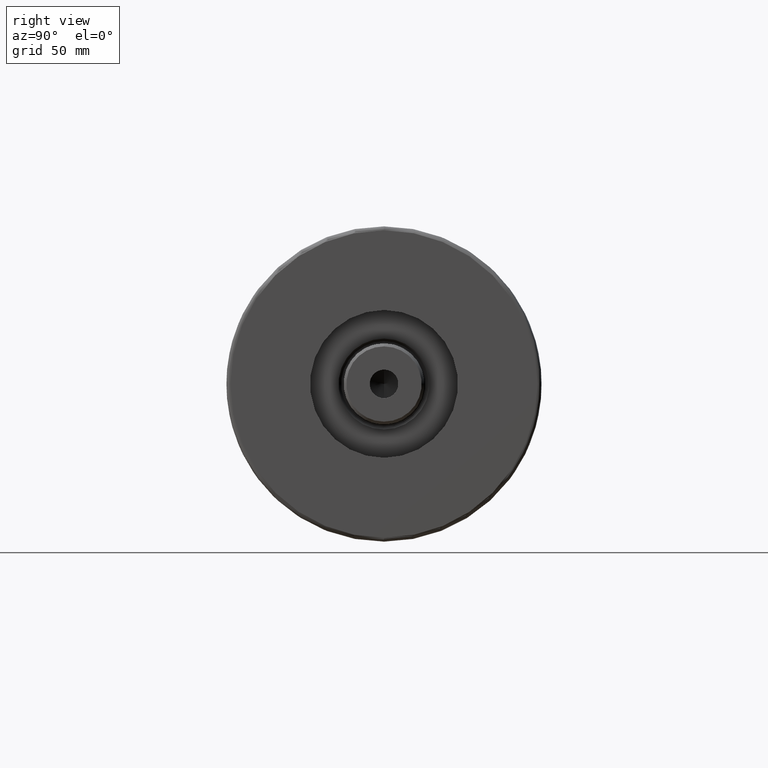
[diagram: clean part render]
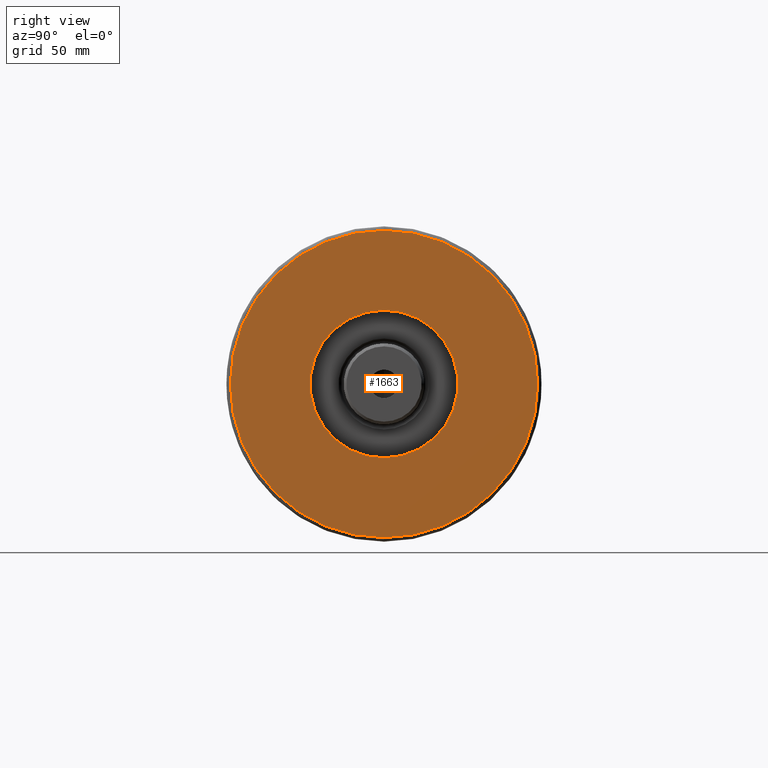
[diagram: same view with one face highlighted and labeled with its STEP entity id]
A machine part, right view. The second image highlights one B-rep face of the part: STEP entity #1663.
In plain terms, the highlighted planar face has unit normal (1, 0, -0).
Its self-contained STEP definition (entity closure, byte-faithful):
#320 = CARTESIAN_POINT ( 'NONE',  ( 0.000000000000000000, 0.000000000000000000, 46.00000000000000000 ) ) ;
#331 = EDGE_CURVE ( 'NONE', #2769, #2687, #1454, .T. ) ;
#387 = DIRECTION ( 'NONE',  ( 0.000000000000000000, 0.000000000000000000, 1.000000000000000000 ) ) ;
#608 = CARTESIAN_POINT ( 'NONE',  ( 0.000000000000000000, 0.000000000000000000, 46.00000000000000000 ) ) ;
#738 = CARTESIAN_POINT ( 'NONE',  ( 0.000000000000000000, 0.000000000000000000, 46.00000000000000000 ) ) ;
#963 = FACE_BOUND ( 'NONE', #3168, .T. ) ;
#1012 = DIRECTION ( 'NONE',  ( 1.000000000000000000, 0.000000000000000000, 0.000000000000000000 ) ) ;
#1030 = CARTESIAN_POINT ( 'NONE',  ( 0.000000000000000000, 0.000000000000000000, 46.00000000000000000 ) ) ;
#1033 = EDGE_CURVE ( 'NONE', #1678, #3473, #2204, .T. ) ;
#1238 = CIRCLE ( 'NONE', #4657, 78.00000000000000000 ) ;
#1314 = AXIS2_PLACEMENT_3D ( 'NONE', #738, #387, #3053 ) ;
#1339 = CARTESIAN_POINT ( 'NONE',  ( -78.00000000000000000, 9.674709713264090904E-15, 46.00000000000000000 ) ) ;
#1454 = CIRCLE ( 'NONE', #1622, 37.50000000000000711 ) ;
#1528 = EDGE_LOOP ( 'NONE', ( #2205, #1806 ) ) ;
#1550 = AXIS2_PLACEMENT_3D ( 'NONE', #3917, #3939, #3255 ) ;
#1622 = AXIS2_PLACEMENT_3D ( 'NONE', #1030, #2878, #4405 ) ;
#1663 = ADVANCED_FACE ( 'NONE', ( #2399, #963 ), #2030, .T. ) ;
#1678 = VERTEX_POINT ( 'NONE', #1339 ) ;
#1806 = ORIENTED_EDGE ( 'NONE', *, *, #1033, .T. ) ;
#2025 = EDGE_CURVE ( 'NONE', #2687, #2769, #3303, .T. ) ;
#2030 = PLANE ( 'NONE',  #1550 ) ;
#2204 = CIRCLE ( 'NONE', #2354, 78.00000000000000000 ) ;
#2205 = ORIENTED_EDGE ( 'NONE', *, *, #3443, .T. ) ;
#2354 = AXIS2_PLACEMENT_3D ( 'NONE', #320, #2922, #2552 ) ;
#2399 = FACE_OUTER_BOUND ( 'NONE', #1528, .T. ) ;
#2552 = DIRECTION ( 'NONE',  ( 1.000000000000000000, 0.000000000000000000, 0.000000000000000000 ) ) ;
#2687 = VERTEX_POINT ( 'NONE', #3823 ) ;
#2769 = VERTEX_POINT ( 'NONE', #4339 ) ;
#2826 = ORIENTED_EDGE ( 'NONE', *, *, #331, .F. ) ;
#2878 = DIRECTION ( 'NONE',  ( 0.000000000000000000, 0.000000000000000000, 1.000000000000000000 ) ) ;
#2922 = DIRECTION ( 'NONE',  ( 0.000000000000000000, 0.000000000000000000, 1.000000000000000000 ) ) ;
#3053 = DIRECTION ( 'NONE',  ( 1.000000000000000000, 0.000000000000000000, 0.000000000000000000 ) ) ;
#3168 = EDGE_LOOP ( 'NONE', ( #3521, #2826 ) ) ;
#3255 = DIRECTION ( 'NONE',  ( 1.000000000000000000, 0.000000000000000000, -0.000000000000000000 ) ) ;
#3303 = CIRCLE ( 'NONE', #1314, 37.50000000000000711 ) ;
#3443 = EDGE_CURVE ( 'NONE', #3473, #1678, #1238, .T. ) ;
#3473 = VERTEX_POINT ( 'NONE', #4061 ) ;
#3521 = ORIENTED_EDGE ( 'NONE', *, *, #2025, .F. ) ;
#3823 = CARTESIAN_POINT ( 'NONE',  ( 37.50000000000000711, 0.000000000000000000, 46.00000000000000000 ) ) ;
#3917 = CARTESIAN_POINT ( 'NONE',  ( 0.000000000000000000, 0.000000000000000000, 46.00000000000000000 ) ) ;
#3939 = DIRECTION ( 'NONE',  ( 0.000000000000000000, 0.000000000000000000, 1.000000000000000000 ) ) ;
#4061 = CARTESIAN_POINT ( 'NONE',  ( 78.00000000000000000, 0.000000000000000000, 46.00000000000000000 ) ) ;
#4339 = CARTESIAN_POINT ( 'NONE',  ( -37.50000000000000711, 4.592425496802575156E-15, 46.00000000000000000 ) ) ;
#4405 = DIRECTION ( 'NONE',  ( 1.000000000000000000, 0.000000000000000000, 0.000000000000000000 ) ) ;
#4453 = DIRECTION ( 'NONE',  ( 0.000000000000000000, 0.000000000000000000, 1.000000000000000000 ) ) ;
#4657 = AXIS2_PLACEMENT_3D ( 'NONE', #608, #4453, #1012 ) ;